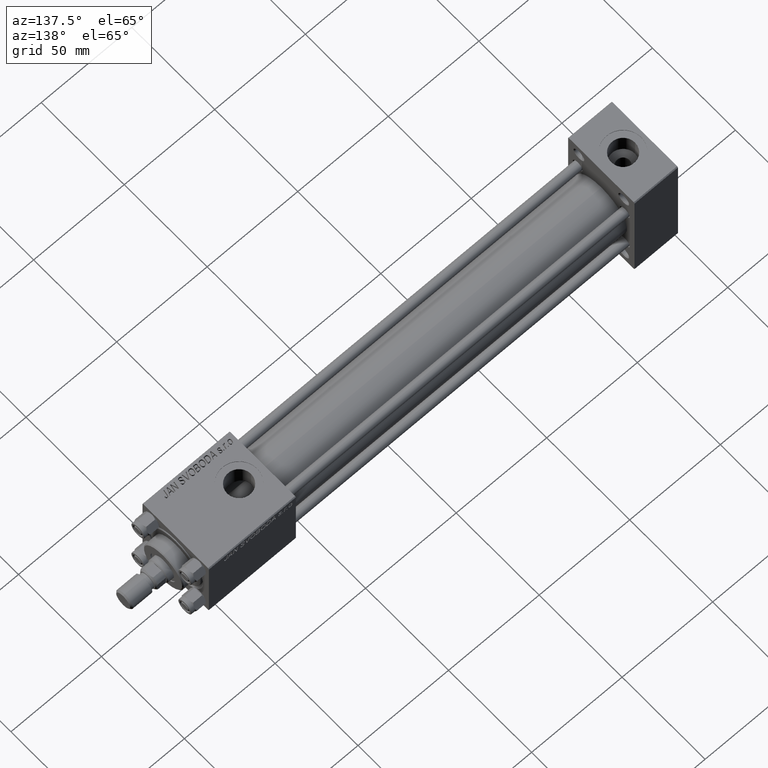
[diagram: clean part render]
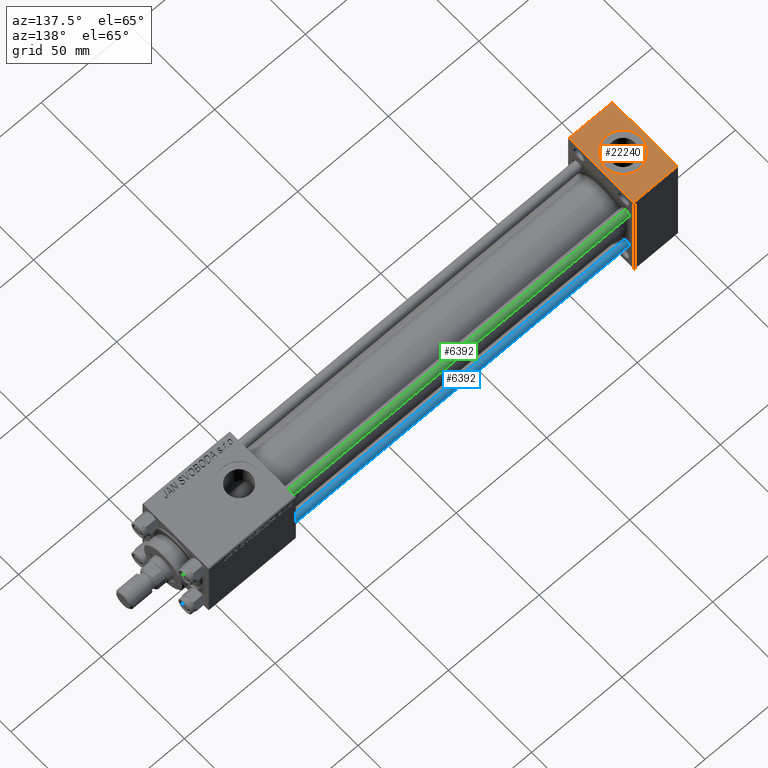
[diagram: same view with three faces highlighted in distinct colors, each labeled with its STEP entity id]
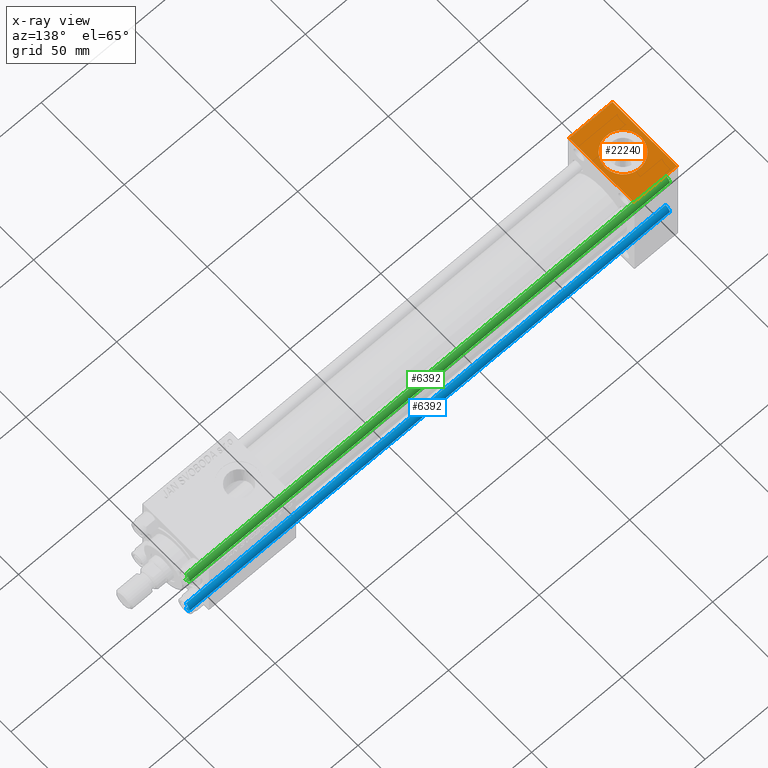
[diagram: x-ray of the same camera — body ghosted, the three highlighted faces saturated]
A machine part, auxiliary view with three faces highlighted in distinct colors.
The next image is the same camera in x-ray (body ghosted, the three faces saturated) — at least one of them is partly hidden behind the body in this view.
Their STEP definitions:

[orange] entity #22240 — the highlighted planar face has unit normal (0, 0, -1).
#391 = VECTOR ( 'NONE', #18733, 1000.000000000000000 ) ;
#2233 = VERTEX_POINT ( 'NONE', #40117 ) ;
#3105 = EDGE_CURVE ( 'NONE', #46545, #5440, #17469, .T. ) ;
#3206 = LINE ( 'NONE', #30685, #391 ) ;
#3617 = DIRECTION ( 'NONE',  ( -1.000000000000000000, 0.000000000000000000, 0.000000000000000000 ) ) ;
#5440 = VERTEX_POINT ( 'NONE', #11980 ) ;
#7215 = EDGE_LOOP ( 'NONE', ( #37418, #31547 ) ) ;
#8805 = ORIENTED_EDGE ( 'NONE', *, *, #23460, .T. ) ;
#9184 = VERTEX_POINT ( 'NONE', #49720 ) ;
#10189 = EDGE_CURVE ( 'NONE', #25822, #33414, #19401, .T. ) ;
#11980 = CARTESIAN_POINT ( 'NONE',  ( 24.00000000000000000, -19.50000000000001776, 32.00000000000000000 ) ) ;
#13482 = AXIS2_PLACEMENT_3D ( 'NONE', #41942, #18246, #14429 ) ;
#14429 = DIRECTION ( 'NONE',  ( 1.000000000000000000, 0.000000000000000000, 0.000000000000000000 ) ) ;
#15255 = CARTESIAN_POINT ( 'NONE',  ( 0.000000000000000000, 19.49999999999999645, 32.00000000000000000 ) ) ;
#17076 = CARTESIAN_POINT ( 'NONE',  ( 24.00000000000000000, 19.99999999999999645, 32.00000000000000000 ) ) ;
#17469 = LINE ( 'NONE', #33014, #24335 ) ;
#18246 = DIRECTION ( 'NONE',  ( 0.000000000000000000, 0.000000000000000000, 1.000000000000000000 ) ) ;
#18733 = DIRECTION ( 'NONE',  ( 0.000000000000000000, -1.000000000000000000, 0.000000000000000000 ) ) ;
#19401 = LINE ( 'NONE', #22954, #35830 ) ;
#22240 = ADVANCED_FACE ( 'NONE', ( #32867, #36939 ), #47678, .F. ) ;
#22954 = CARTESIAN_POINT ( 'NONE',  ( 0.000000000000000000, 19.49999999999999645, 32.00000000000000000 ) ) ;
#23460 = EDGE_CURVE ( 'NONE', #33414, #46545, #33151, .T. ) ;
#23733 = EDGE_CURVE ( 'NONE', #9184, #2233, #47685, .T. ) ;
#23893 = CARTESIAN_POINT ( 'NONE',  ( 0.000000000000000000, -19.50000000000001776, 32.00000000000000000 ) ) ;
#24037 = CARTESIAN_POINT ( 'NONE',  ( 24.00000000000000000, 19.49999999999999645, 32.00000000000000000 ) ) ;
#24335 = VECTOR ( 'NONE', #39660, 1000.000000000000000 ) ;
#24830 = VECTOR ( 'NONE', #38985, 1000.000000000000000 ) ;
#24934 = ORIENTED_EDGE ( 'NONE', *, *, #3105, .T. ) ;
#25822 = VERTEX_POINT ( 'NONE', #24037 ) ;
#25985 = DIRECTION ( 'NONE',  ( 1.000000000000000000, 0.000000000000000000, 0.000000000000000000 ) ) ;
#27643 = ORIENTED_EDGE ( 'NONE', *, *, #47871, .F. ) ;
#28546 = DIRECTION ( 'NONE',  ( -1.000000000000000000, 0.000000000000000000, -0.000000000000000000 ) ) ;
#30685 = CARTESIAN_POINT ( 'NONE',  ( 24.00000000000000000, 19.99999999999999645, 32.00000000000000000 ) ) ;
#31547 = ORIENTED_EDGE ( 'NONE', *, *, #45253, .F. ) ;
#32867 = FACE_BOUND ( 'NONE', #7215, .T. ) ;
#33014 = CARTESIAN_POINT ( 'NONE',  ( 24.00000000000000000, -19.50000000000001776, 32.00000000000000000 ) ) ;
#33151 = LINE ( 'NONE', #48715, #24830 ) ;
#33414 = VERTEX_POINT ( 'NONE', #15255 ) ;
#35830 = VECTOR ( 'NONE', #3617, 1000.000000000000000 ) ;
#36939 = FACE_OUTER_BOUND ( 'NONE', #37755, .T. ) ;
#37418 = ORIENTED_EDGE ( 'NONE', *, *, #23733, .F. ) ;
#37467 = CARTESIAN_POINT ( 'NONE',  ( 12.00000000000000000, 5.204170427930421283E-15, 32.00000000000000000 ) ) ;
#37755 = EDGE_LOOP ( 'NONE', ( #8805, #24934, #27643, #44284 ) ) ;
#38985 = DIRECTION ( 'NONE',  ( 0.000000000000000000, -1.000000000000000000, 0.000000000000000000 ) ) ;
#39660 = DIRECTION ( 'NONE',  ( 1.000000000000000000, 0.000000000000000000, 0.000000000000000000 ) ) ;
#40117 = CARTESIAN_POINT ( 'NONE',  ( 2.000000000000003553, 6.428817227077774342E-15, 32.00000000000000000 ) ) ;
#41049 = DIRECTION ( 'NONE',  ( 0.000000000000000000, 0.000000000000000000, 1.000000000000000000 ) ) ;
#41942 = CARTESIAN_POINT ( 'NONE',  ( 12.00000000000000000, 5.204170427930421283E-15, 32.00000000000000000 ) ) ;
#44212 = CIRCLE ( 'NONE', #49898, 9.999999999999998224 ) ;
#44284 = ORIENTED_EDGE ( 'NONE', *, *, #10189, .T. ) ;
#45157 = AXIS2_PLACEMENT_3D ( 'NONE', #17076, #48180, #28546 ) ;
#45253 = EDGE_CURVE ( 'NONE', #2233, #9184, #44212, .T. ) ;
#46545 = VERTEX_POINT ( 'NONE', #23893 ) ;
#47678 = PLANE ( 'NONE',  #45157 ) ;
#47685 = CIRCLE ( 'NONE', #13482, 9.999999999999998224 ) ;
#47871 = EDGE_CURVE ( 'NONE', #25822, #5440, #3206, .T. ) ;
#48180 = DIRECTION ( 'NONE',  ( 0.000000000000000000, 0.000000000000000000, -1.000000000000000000 ) ) ;
#48715 = CARTESIAN_POINT ( 'NONE',  ( 0.000000000000000000, 19.99999999999999645, 32.00000000000000000 ) ) ;
#49720 = CARTESIAN_POINT ( 'NONE',  ( 22.00000000000000000, 5.204170427930421283E-15, 32.00000000000000000 ) ) ;
#49898 = AXIS2_PLACEMENT_3D ( 'NONE', #37467, #41049, #25985 ) ;

[blue] entity #6392 — the highlighted cylindrical surface (edge-blend (fillet) strip) has radius 2.5 mm, axis along (-1, 0, 0).
#428 = LINE ( 'NONE', #11626, #24619 ) ;
#1927 = FACE_OUTER_BOUND ( 'NONE', #34039, .T. ) ;
#2008 = VERTEX_POINT ( 'NONE', #48631 ) ;
#6392 = ADVANCED_FACE ( 'NONE', ( #1927 ), #9314, .T. ) ;
#6399 = DIRECTION ( 'NONE',  ( 1.000000000000000000, 0.000000000000000000, 0.000000000000000000 ) ) ;
#8814 = EDGE_CURVE ( 'NONE', #16694, #22646, #24337, .T. ) ;
#9314 = CYLINDRICAL_SURFACE ( 'NONE', #26857, 2.500000000000000000 ) ;
#11626 = CARTESIAN_POINT ( 'NONE',  ( 2.500000000000000000, 3.061616997868383141E-16, 266.0000000000000000 ) ) ;
#11936 = EDGE_CURVE ( 'NONE', #39585, #2008, #428, .T. ) ;
#12354 = DIRECTION ( 'NONE',  ( 0.000000000000000000, 0.000000000000000000, -1.000000000000000000 ) ) ;
#12881 = CARTESIAN_POINT ( 'NONE',  ( 0.000000000000000000, 0.000000000000000000, 266.0000000000000000 ) ) ;
#16694 = VERTEX_POINT ( 'NONE', #41906 ) ;
#17197 = DIRECTION ( 'NONE',  ( -1.000000000000000000, 0.000000000000000000, 0.000000000000000000 ) ) ;
#22646 = VERTEX_POINT ( 'NONE', #41427 ) ;
#24337 = LINE ( 'NONE', #28910, #38208 ) ;
#24358 = ORIENTED_EDGE ( 'NONE', *, *, #27748, .T. ) ;
#24619 = VECTOR ( 'NONE', #47046, 1000.000000000000000 ) ;
#26857 = AXIS2_PLACEMENT_3D ( 'NONE', #12881, #48548, #17197 ) ;
#27748 = EDGE_CURVE ( 'NONE', #39585, #16694, #35551, .T. ) ;
#28910 = CARTESIAN_POINT ( 'NONE',  ( -2.500000000000000000, 0.000000000000000000, 266.0000000000000000 ) ) ;
#29590 = ORIENTED_EDGE ( 'NONE', *, *, #8814, .T. ) ;
#34039 = EDGE_LOOP ( 'NONE', ( #36322, #24358, #29590, #49733 ) ) ;
#35551 = CIRCLE ( 'NONE', #49403, 2.500000000000000000 ) ;
#35785 = DIRECTION ( 'NONE',  ( 1.000000000000000000, 0.000000000000000000, 0.000000000000000000 ) ) ;
#36322 = ORIENTED_EDGE ( 'NONE', *, *, #11936, .F. ) ;
#37711 = CARTESIAN_POINT ( 'NONE',  ( 0.000000000000000000, 0.000000000000000000, 0.5000000000000559552 ) ) ;
#38208 = VECTOR ( 'NONE', #39886, 1000.000000000000000 ) ;
#38520 = AXIS2_PLACEMENT_3D ( 'NONE', #37711, #45619, #6399 ) ;
#39585 = VERTEX_POINT ( 'NONE', #48040 ) ;
#39863 = CARTESIAN_POINT ( 'NONE',  ( 0.000000000000000000, 0.000000000000000000, 265.5000000000000568 ) ) ;
#39886 = DIRECTION ( 'NONE',  ( -0.000000000000000000, -0.000000000000000000, -1.000000000000000000 ) ) ;
#41427 = CARTESIAN_POINT ( 'NONE',  ( -2.500000000000000000, 0.000000000000000000, 0.5000000000000559552 ) ) ;
#41906 = CARTESIAN_POINT ( 'NONE',  ( -2.500000000000000000, 0.000000000000000000, 265.5000000000000568 ) ) ;
#45042 = CIRCLE ( 'NONE', #38520, 2.500000000000000000 ) ;
#45214 = EDGE_CURVE ( 'NONE', #22646, #2008, #45042, .T. ) ;
#45619 = DIRECTION ( 'NONE',  ( -0.000000000000000000, -0.000000000000000000, 1.000000000000000000 ) ) ;
#47046 = DIRECTION ( 'NONE',  ( -0.000000000000000000, -0.000000000000000000, -1.000000000000000000 ) ) ;
#48040 = CARTESIAN_POINT ( 'NONE',  ( 2.500000000000000000, 3.061616997868383141E-16, 265.5000000000000568 ) ) ;
#48548 = DIRECTION ( 'NONE',  ( -0.000000000000000000, -0.000000000000000000, -1.000000000000000000 ) ) ;
#48631 = CARTESIAN_POINT ( 'NONE',  ( 2.500000000000000000, 3.061616997868383141E-16, 0.5000000000000559552 ) ) ;
#49403 = AXIS2_PLACEMENT_3D ( 'NONE', #39863, #12354, #35785 ) ;
#49733 = ORIENTED_EDGE ( 'NONE', *, *, #45214, .T. ) ;

[green] entity #6392 — the highlighted cylindrical surface (edge-blend (fillet) strip) has radius 2.5 mm, axis along (1, 0, 0).
#428 = LINE ( 'NONE', #11626, #24619 ) ;
#1927 = FACE_OUTER_BOUND ( 'NONE', #34039, .T. ) ;
#2008 = VERTEX_POINT ( 'NONE', #48631 ) ;
#6392 = ADVANCED_FACE ( 'NONE', ( #1927 ), #9314, .T. ) ;
#6399 = DIRECTION ( 'NONE',  ( 1.000000000000000000, 0.000000000000000000, 0.000000000000000000 ) ) ;
#8814 = EDGE_CURVE ( 'NONE', #16694, #22646, #24337, .T. ) ;
#9314 = CYLINDRICAL_SURFACE ( 'NONE', #26857, 2.500000000000000000 ) ;
#11626 = CARTESIAN_POINT ( 'NONE',  ( 2.500000000000000000, 3.061616997868383141E-16, 266.0000000000000000 ) ) ;
#11936 = EDGE_CURVE ( 'NONE', #39585, #2008, #428, .T. ) ;
#12354 = DIRECTION ( 'NONE',  ( 0.000000000000000000, 0.000000000000000000, -1.000000000000000000 ) ) ;
#12881 = CARTESIAN_POINT ( 'NONE',  ( 0.000000000000000000, 0.000000000000000000, 266.0000000000000000 ) ) ;
#16694 = VERTEX_POINT ( 'NONE', #41906 ) ;
#17197 = DIRECTION ( 'NONE',  ( -1.000000000000000000, 0.000000000000000000, 0.000000000000000000 ) ) ;
#22646 = VERTEX_POINT ( 'NONE', #41427 ) ;
#24337 = LINE ( 'NONE', #28910, #38208 ) ;
#24358 = ORIENTED_EDGE ( 'NONE', *, *, #27748, .T. ) ;
#24619 = VECTOR ( 'NONE', #47046, 1000.000000000000000 ) ;
#26857 = AXIS2_PLACEMENT_3D ( 'NONE', #12881, #48548, #17197 ) ;
#27748 = EDGE_CURVE ( 'NONE', #39585, #16694, #35551, .T. ) ;
#28910 = CARTESIAN_POINT ( 'NONE',  ( -2.500000000000000000, 0.000000000000000000, 266.0000000000000000 ) ) ;
#29590 = ORIENTED_EDGE ( 'NONE', *, *, #8814, .T. ) ;
#34039 = EDGE_LOOP ( 'NONE', ( #36322, #24358, #29590, #49733 ) ) ;
#35551 = CIRCLE ( 'NONE', #49403, 2.500000000000000000 ) ;
#35785 = DIRECTION ( 'NONE',  ( 1.000000000000000000, 0.000000000000000000, 0.000000000000000000 ) ) ;
#36322 = ORIENTED_EDGE ( 'NONE', *, *, #11936, .F. ) ;
#37711 = CARTESIAN_POINT ( 'NONE',  ( 0.000000000000000000, 0.000000000000000000, 0.5000000000000559552 ) ) ;
#38208 = VECTOR ( 'NONE', #39886, 1000.000000000000000 ) ;
#38520 = AXIS2_PLACEMENT_3D ( 'NONE', #37711, #45619, #6399 ) ;
#39585 = VERTEX_POINT ( 'NONE', #48040 ) ;
#39863 = CARTESIAN_POINT ( 'NONE',  ( 0.000000000000000000, 0.000000000000000000, 265.5000000000000568 ) ) ;
#39886 = DIRECTION ( 'NONE',  ( -0.000000000000000000, -0.000000000000000000, -1.000000000000000000 ) ) ;
#41427 = CARTESIAN_POINT ( 'NONE',  ( -2.500000000000000000, 0.000000000000000000, 0.5000000000000559552 ) ) ;
#41906 = CARTESIAN_POINT ( 'NONE',  ( -2.500000000000000000, 0.000000000000000000, 265.5000000000000568 ) ) ;
#45042 = CIRCLE ( 'NONE', #38520, 2.500000000000000000 ) ;
#45214 = EDGE_CURVE ( 'NONE', #22646, #2008, #45042, .T. ) ;
#45619 = DIRECTION ( 'NONE',  ( -0.000000000000000000, -0.000000000000000000, 1.000000000000000000 ) ) ;
#47046 = DIRECTION ( 'NONE',  ( -0.000000000000000000, -0.000000000000000000, -1.000000000000000000 ) ) ;
#48040 = CARTESIAN_POINT ( 'NONE',  ( 2.500000000000000000, 3.061616997868383141E-16, 265.5000000000000568 ) ) ;
#48548 = DIRECTION ( 'NONE',  ( -0.000000000000000000, -0.000000000000000000, -1.000000000000000000 ) ) ;
#48631 = CARTESIAN_POINT ( 'NONE',  ( 2.500000000000000000, 3.061616997868383141E-16, 0.5000000000000559552 ) ) ;
#49403 = AXIS2_PLACEMENT_3D ( 'NONE', #39863, #12354, #35785 ) ;
#49733 = ORIENTED_EDGE ( 'NONE', *, *, #45214, .T. ) ;